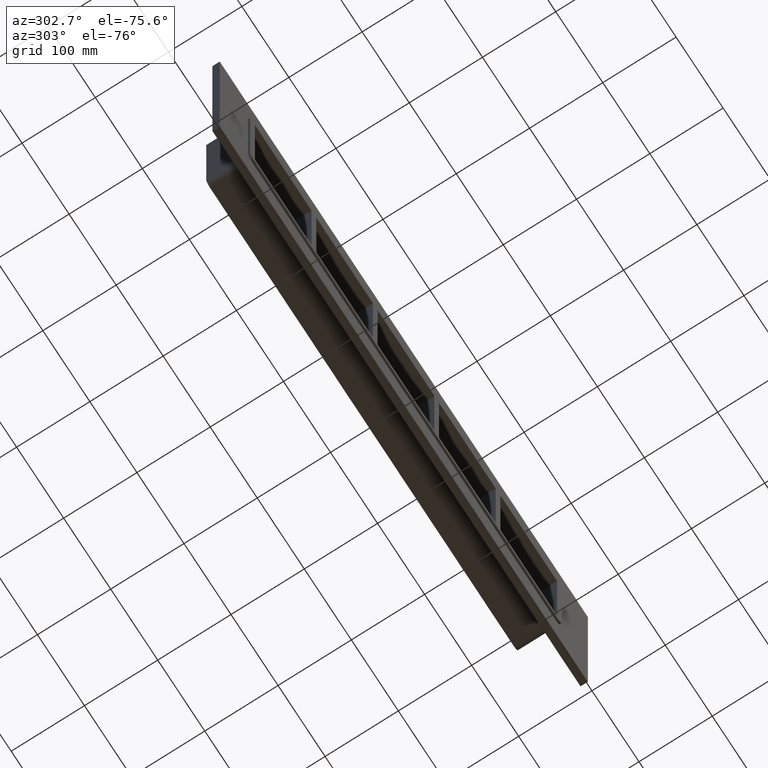
[diagram: clean part render]
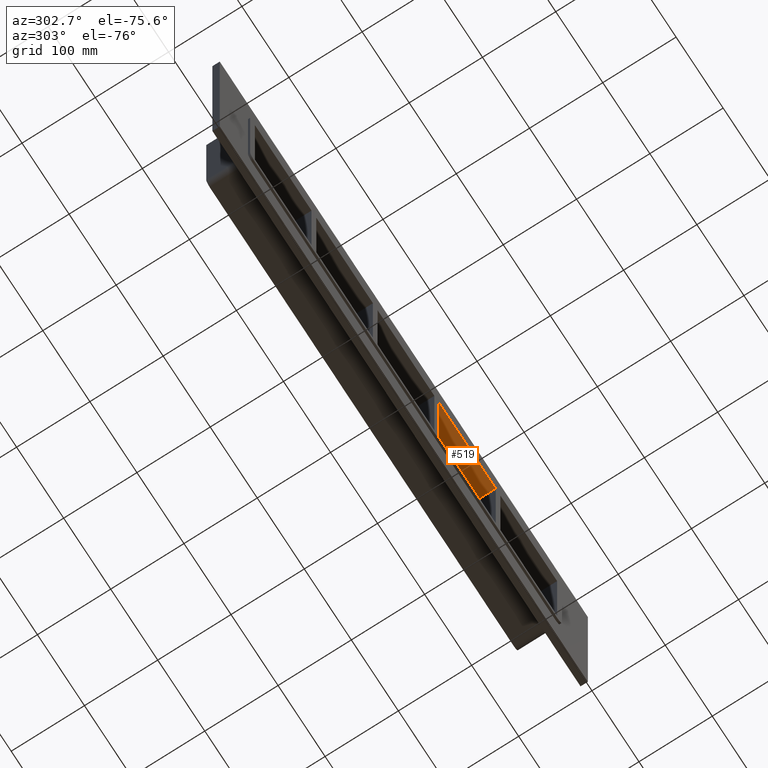
[diagram: same view with one face highlighted and labeled with its STEP entity id]
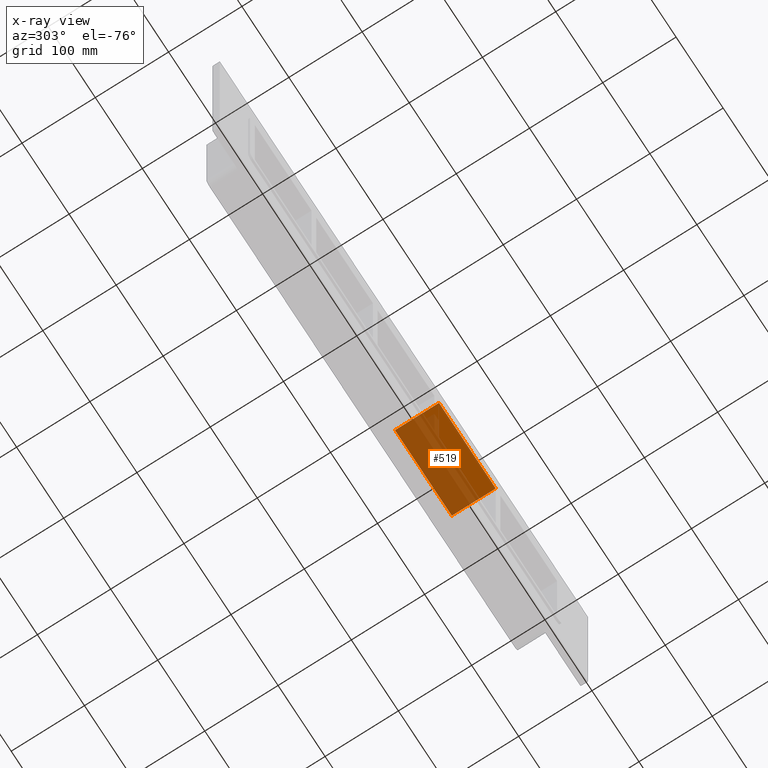
[diagram: x-ray of the same camera — body ghosted, the highlighted face saturated]
A machine part, auxiliary view. The second image highlights one B-rep face of the part: STEP entity #519.
The next image is the same camera in x-ray: the body ghosted, the highlighted face saturated — about 66% of this face is hidden behind the body in this view.
In plain terms, the highlighted planar face has unit normal (0, 0, 1).
Its self-contained STEP definition (entity closure, byte-faithful):
#75=CARTESIAN_POINT('',(190.74999999999872,-3.0,79.750000000000028));
#76=VERTEX_POINT('',#75);
#83=CARTESIAN_POINT('',(190.74999999999872,57.0,79.750000000000028));
#84=VERTEX_POINT('',#83);
#85=CARTESIAN_POINT('',(190.74999999999872,57.000000000000007,79.750000000000014));
#86=DIRECTION('',(0.0,-1.0,0.0));
#87=VECTOR('',#86,60.000000000000007);
#88=LINE('',#85,#87);
#89=EDGE_CURVE('',#84,#76,#88,.T.);
#193=CARTESIAN_POINT('',(70.249999999992738,-3.0,79.750000000000028));
#194=VERTEX_POINT('',#193);
#211=CARTESIAN_POINT('',(70.249999999992738,57.0,79.750000000000028));
#212=VERTEX_POINT('',#211);
#219=CARTESIAN_POINT('',(70.249999999992738,-3.0,79.750000000000014));
#220=DIRECTION('',(0.0,1.0,0.0));
#221=VECTOR('',#220,60.000000000000007);
#222=LINE('',#219,#221);
#223=EDGE_CURVE('',#194,#212,#222,.T.);
#498=CARTESIAN_POINT('',(-321.24999999999994,0.0,79.750000000000014));
#499=DIRECTION('',(0.0,0.0,1.0));
#500=DIRECTION('',(1.0,0.0,0.0));
#501=AXIS2_PLACEMENT_3D('',#498,#499,#500);
#502=PLANE('',#501);
#503=ORIENTED_EDGE('',*,*,#89,.T.);
#504=CARTESIAN_POINT('',(70.249999999992724,-3.0,79.750000000000014));
#505=DIRECTION('',(1.0,0.0,0.0));
#506=VECTOR('',#505,120.50000000000597);
#507=LINE('',#504,#506);
#508=EDGE_CURVE('',#194,#76,#507,.T.);
#509=ORIENTED_EDGE('',*,*,#508,.F.);
#510=ORIENTED_EDGE('',*,*,#223,.T.);
#511=CARTESIAN_POINT('',(190.74999999999869,57.0,79.750000000000014));
#512=DIRECTION('',(-1.0,0.0,0.0));
#513=VECTOR('',#512,120.50000000000597);
#514=LINE('',#511,#513);
#515=EDGE_CURVE('',#84,#212,#514,.T.);
#516=ORIENTED_EDGE('',*,*,#515,.F.);
#517=EDGE_LOOP('',(#503,#509,#510,#516));
#518=FACE_OUTER_BOUND('',#517,.T.);
#519=ADVANCED_FACE('',(#518),#502,.F.);